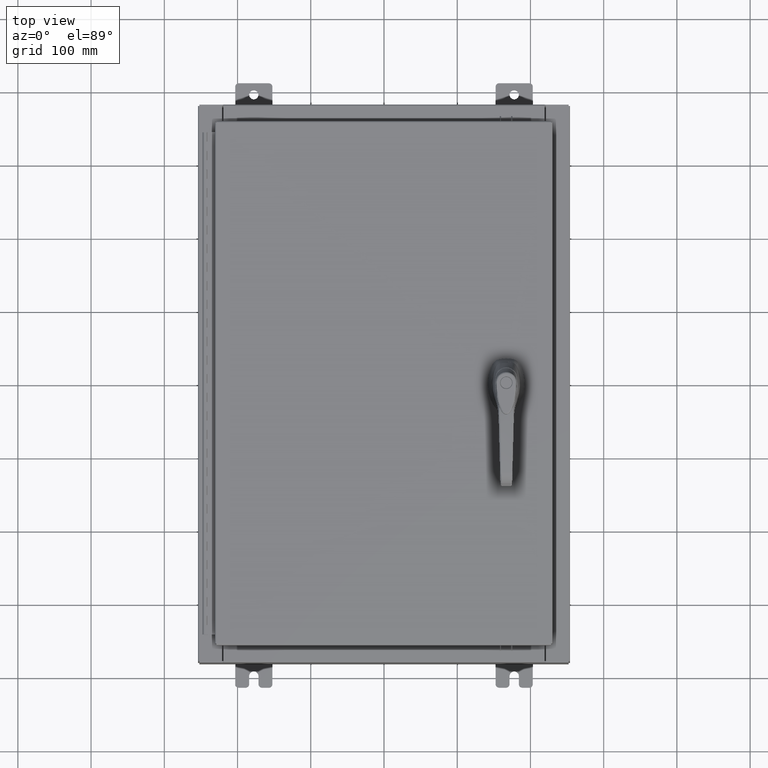
[diagram: clean part render]
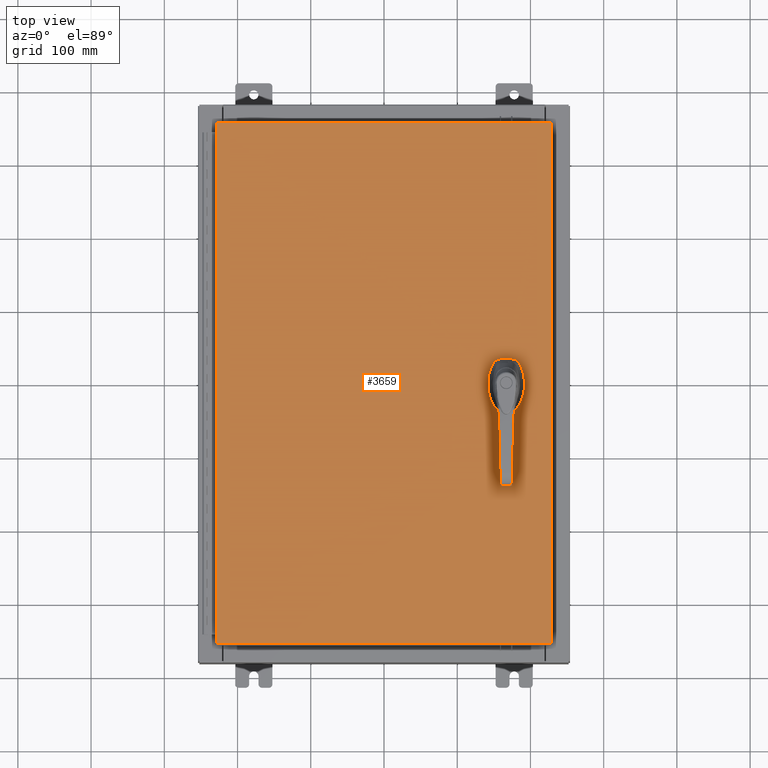
[diagram: same view with one face highlighted and labeled with its STEP entity id]
A machine part, top view. The second image highlights one B-rep face of the part: STEP entity #3659.
In plain terms, the highlighted planar face has unit normal (0, 0, -1).
Its self-contained STEP definition (entity closure, byte-faithful):
#767 = CARTESIAN_POINT ( 'NONE',  ( 6.578000000000000300, -1.338000000000000100, 0.0000000000000000000 ) ) ;
#3507 = CARTESIAN_POINT ( 'NONE',  ( 0.0000000000000000000, 0.0000000000000000000, 0.0000000000000000000 ) ) ;
#3659 = ADVANCED_FACE ( 'NONE', ( #56565, #10816, #102441 ), #39872, .F. ) ;
#4966 = ORIENTED_EDGE ( 'NONE', *, *, #91086, .F. ) ;
#5198 = CARTESIAN_POINT ( 'NONE',  ( -8.990299999999996000, -14.00629999999999800, 1.963515745446189200E-015 ) ) ;
#7175 = CIRCLE ( 'NONE', #39987, 0.4499999999999156900 ) ;
#7738 = EDGE_LOOP ( 'NONE', ( #89109, #10683, #35014, #95473 ) ) ;
#8666 = VERTEX_POINT ( 'NONE', #69613 ) ;
#10013 = DIRECTION ( 'NONE',  ( 1.000000000000000000, 0.0000000000000000000, 0.0000000000000000000 ) ) ;
#10284 = CIRCLE ( 'NONE', #26269, 0.4499999999999156900 ) ;
#10683 = ORIENTED_EDGE ( 'NONE', *, *, #68450, .T. ) ;
#10816 = FACE_OUTER_BOUND ( 'NONE', #7738, .T. ) ;
#10912 = CARTESIAN_POINT ( 'NONE',  ( 8.990300000000001300, 14.00629999999999800, -2.048885995248197400E-016 ) ) ;
#12323 = LINE ( 'NONE', #46281, #30850 ) ;
#13588 = LINE ( 'NONE', #81976, #56440 ) ;
#13757 = VERTEX_POINT ( 'NONE', #10912 ) ;
#14719 = VERTEX_POINT ( 'NONE', #46140 ) ;
#15820 = CIRCLE ( 'NONE', #32874, 0.1715000000000000700 ) ;
#17538 = EDGE_CURVE ( 'NONE', #14719, #90242, #67314, .T. ) ;
#18032 = DIRECTION ( 'NONE',  ( 0.0000000000000000000, -1.000000000000000000, 0.0000000000000000000 ) ) ;
#18447 = VERTEX_POINT ( 'NONE', #79573 ) ;
#20784 = CARTESIAN_POINT ( 'NONE',  ( 8.990300000000001300, 14.00629999999999800, -2.048885995248197400E-016 ) ) ;
#21908 = DIRECTION ( 'NONE',  ( -1.000000000000000000, 0.0000000000000000000, -0.0000000000000000000 ) ) ;
#22307 = DIRECTION ( 'NONE',  ( -0.0000000000000000000, 0.0000000000000000000, 1.000000000000000000 ) ) ;
#23231 = LINE ( 'NONE', #31329, #117724 ) ;
#23769 = CARTESIAN_POINT ( 'NONE',  ( 6.377772629243691100, -0.4029999999999252000, 0.0000000000000000000 ) ) ;
#23992 = DIRECTION ( 'NONE',  ( 1.000000000000000000, -0.0000000000000000000, -0.0000000000000000000 ) ) ;
#24501 = DIRECTION ( 'NONE',  ( 0.0000000000000000000, 1.000000000000000000, 0.0000000000000000000 ) ) ;
#26269 = AXIS2_PLACEMENT_3D ( 'NONE', #26924, #90922, #36077 ) ;
#26298 = VERTEX_POINT ( 'NONE', #23769 ) ;
#26924 = CARTESIAN_POINT ( 'NONE',  ( 6.578000000000000300, 0.0000000000000000000, 0.0000000000000000000 ) ) ;
#27043 = VECTOR ( 'NONE', #116670, 39.37007874015748100 ) ;
#27431 = EDGE_CURVE ( 'NONE', #18447, #26298, #7175, .T. ) ;
#27869 = CARTESIAN_POINT ( 'NONE',  ( 6.377772629243691100, 0.4029999999999252000, 0.0000000000000000000 ) ) ;
#29980 = DIRECTION ( 'NONE',  ( -1.000000000000000000, -0.0000000000000000000, -0.0000000000000000000 ) ) ;
#30850 = VECTOR ( 'NONE', #101118, 39.37007874015748100 ) ;
#31307 = EDGE_CURVE ( 'NONE', #8666, #44349, #83901, .T. ) ;
#31329 = CARTESIAN_POINT ( 'NONE',  ( 0.0000000000000000000, -0.4029999999999252000, 0.0000000000000000000 ) ) ;
#31647 = EDGE_CURVE ( 'NONE', #115485, #8666, #12323, .T. ) ;
#32874 = AXIS2_PLACEMENT_3D ( 'NONE', #767, #64749, #10013 ) ;
#33347 = VERTEX_POINT ( 'NONE', #35863 ) ;
#33824 = VECTOR ( 'NONE', #24501, 39.37007874015748100 ) ;
#34567 = CARTESIAN_POINT ( 'NONE',  ( 6.578000000000000300, 0.0000000000000000000, 0.0000000000000000000 ) ) ;
#35014 = ORIENTED_EDGE ( 'NONE', *, *, #113372, .T. ) ;
#35863 = CARTESIAN_POINT ( 'NONE',  ( 6.175000000000075300, 0.2002273707563079800, 0.0000000000000000000 ) ) ;
#36077 = DIRECTION ( 'NONE',  ( 1.000000000000000000, 0.0000000000000000000, 0.0000000000000000000 ) ) ;
#36359 = DIRECTION ( 'NONE',  ( -0.0000000000000000000, 0.0000000000000000000, 1.000000000000000000 ) ) ;
#36367 = EDGE_CURVE ( 'NONE', #107211, #107252, #15820, .T. ) ;
#37434 = ORIENTED_EDGE ( 'NONE', *, *, #103017, .F. ) ;
#39872 = PLANE ( 'NONE',  #84607 ) ;
#39987 = AXIS2_PLACEMENT_3D ( 'NONE', #34567, #98626, #43799 ) ;
#41051 = ORIENTED_EDGE ( 'NONE', *, *, #36367, .F. ) ;
#43178 = CARTESIAN_POINT ( 'NONE',  ( 8.990300000000001300, -14.00629999999999800, -7.683322482180740400E-016 ) ) ;
#43799 = DIRECTION ( 'NONE',  ( 1.000000000000000000, 0.0000000000000000000, 0.0000000000000000000 ) ) ;
#44349 = VERTEX_POINT ( 'NONE', #43178 ) ;
#44561 = CARTESIAN_POINT ( 'NONE',  ( 6.778227370756310300, -0.4029999999999252000, 0.0000000000000000000 ) ) ;
#46120 = DIRECTION ( 'NONE',  ( -0.0000000000000000000, 0.0000000000000000000, 1.000000000000000000 ) ) ;
#46140 = CARTESIAN_POINT ( 'NONE',  ( 6.980999999999926200, 0.2002273707563080300, 0.0000000000000000000 ) ) ;
#46281 = CARTESIAN_POINT ( 'NONE',  ( -8.990299999999997700, 14.00630000000000100, -2.048885995248197400E-016 ) ) ;
#49356 = ORIENTED_EDGE ( 'NONE', *, *, #109828, .F. ) ;
#49616 = VECTOR ( 'NONE', #29980, 39.37007874015748100 ) ;
#51497 = ORIENTED_EDGE ( 'NONE', *, *, #60052, .F. ) ;
#55254 = LINE ( 'NONE', #79277, #33824 ) ;
#56440 = VECTOR ( 'NONE', #18032, 39.37007874015748100 ) ;
#56445 = EDGE_CURVE ( 'NONE', #107252, #107211, #105177, .T. ) ;
#56512 = EDGE_CURVE ( 'NONE', #14719, #114322, #13588, .T. ) ;
#56565 = FACE_BOUND ( 'NONE', #107512, .T. ) ;
#58902 = DIRECTION ( 'NONE',  ( 1.000000000000000000, 0.0000000000000000000, 0.0000000000000000000 ) ) ;
#59973 = ORIENTED_EDGE ( 'NONE', *, *, #56445, .F. ) ;
#60052 = EDGE_CURVE ( 'NONE', #33347, #18447, #76227, .T. ) ;
#61415 = CARTESIAN_POINT ( 'NONE',  ( 0.0000000000000000000, 0.4029999999999252000, 0.0000000000000000000 ) ) ;
#61527 = CARTESIAN_POINT ( 'NONE',  ( 6.749500000000001200, -1.338000000000000100, 0.0000000000000000000 ) ) ;
#61957 = ORIENTED_EDGE ( 'NONE', *, *, #56512, .T. ) ;
#61985 = EDGE_LOOP ( 'NONE', ( #61957, #82728, #37434, #88612, #51497, #4966, #49356, #75590 ) ) ;
#62405 = CARTESIAN_POINT ( 'NONE',  ( 6.778227370756310300, 0.4029999999999252000, 0.0000000000000000000 ) ) ;
#64749 = DIRECTION ( 'NONE',  ( -0.0000000000000000000, 0.0000000000000000000, 1.000000000000000000 ) ) ;
#65571 = CARTESIAN_POINT ( 'NONE',  ( 6.175000000000075300, 0.0000000000000000000, 0.0000000000000000000 ) ) ;
#67022 = CARTESIAN_POINT ( 'NONE',  ( -8.990299999999997700, 14.00630000000000100, -2.048885995248197400E-016 ) ) ;
#67314 = CIRCLE ( 'NONE', #102463, 0.4499999999999156900 ) ;
#68450 = EDGE_CURVE ( 'NONE', #44349, #13757, #55254, .T. ) ;
#69613 = CARTESIAN_POINT ( 'NONE',  ( -8.990299999999997700, -14.00629999999999800, 1.980589795406590900E-015 ) ) ;
#70007 = LINE ( 'NONE', #61415, #27043 ) ;
#71331 = CIRCLE ( 'NONE', #101669, 0.4499999999999156900 ) ;
#72021 = AXIS2_PLACEMENT_3D ( 'NONE', #91228, #36359, #100429 ) ;
#73990 = LINE ( 'NONE', #20784, #49616 ) ;
#74773 = DIRECTION ( 'NONE',  ( 0.0000000000000000000, -1.000000000000000000, 0.0000000000000000000 ) ) ;
#75590 = ORIENTED_EDGE ( 'NONE', *, *, #17538, .F. ) ;
#76227 = LINE ( 'NONE', #65571, #97747 ) ;
#76708 = DIRECTION ( 'NONE',  ( 0.0000000000000000000, 0.0000000000000000000, -1.000000000000000000 ) ) ;
#77122 = CARTESIAN_POINT ( 'NONE',  ( 6.578000000000000300, 0.0000000000000000000, 0.0000000000000000000 ) ) ;
#78197 = VECTOR ( 'NONE', #23992, 39.37007874015748100 ) ;
#79277 = CARTESIAN_POINT ( 'NONE',  ( 8.990300000000001300, -14.00629999999999800, -7.683322482180740400E-016 ) ) ;
#79573 = CARTESIAN_POINT ( 'NONE',  ( 6.175000000000075300, -0.2002273707563079800, 0.0000000000000000000 ) ) ;
#81976 = CARTESIAN_POINT ( 'NONE',  ( 6.980999999999926200, 0.0000000000000000000, 0.0000000000000000000 ) ) ;
#82728 = ORIENTED_EDGE ( 'NONE', *, *, #95335, .F. ) ;
#83901 = LINE ( 'NONE', #5198, #78197 ) ;
#84607 = AXIS2_PLACEMENT_3D ( 'NONE', #3507, #76708, #21908 ) ;
#86281 = DIRECTION ( 'NONE',  ( 1.000000000000000000, 0.0000000000000000000, 0.0000000000000000000 ) ) ;
#88612 = ORIENTED_EDGE ( 'NONE', *, *, #27431, .F. ) ;
#89109 = ORIENTED_EDGE ( 'NONE', *, *, #31307, .T. ) ;
#90242 = VERTEX_POINT ( 'NONE', #62405 ) ;
#90922 = DIRECTION ( 'NONE',  ( -0.0000000000000000000, 0.0000000000000000000, 1.000000000000000000 ) ) ;
#91086 = EDGE_CURVE ( 'NONE', #107481, #33347, #10284, .T. ) ;
#91228 = CARTESIAN_POINT ( 'NONE',  ( 6.578000000000000300, -1.338000000000000100, 0.0000000000000000000 ) ) ;
#94382 = CARTESIAN_POINT ( 'NONE',  ( 6.406500000000000300, -1.338000000000000100, 0.0000000000000000000 ) ) ;
#95335 = EDGE_CURVE ( 'NONE', #100413, #114322, #71331, .T. ) ;
#95473 = ORIENTED_EDGE ( 'NONE', *, *, #31647, .T. ) ;
#97747 = VECTOR ( 'NONE', #74773, 39.37007874015748100 ) ;
#98626 = DIRECTION ( 'NONE',  ( -0.0000000000000000000, 0.0000000000000000000, 1.000000000000000000 ) ) ;
#100413 = VERTEX_POINT ( 'NONE', #44561 ) ;
#100429 = DIRECTION ( 'NONE',  ( 1.000000000000000000, 0.0000000000000000000, 0.0000000000000000000 ) ) ;
#100950 = CARTESIAN_POINT ( 'NONE',  ( 6.578000000000000300, 0.0000000000000000000, 0.0000000000000000000 ) ) ;
#101118 = DIRECTION ( 'NONE',  ( 0.0000000000000000000, -1.000000000000000000, 0.0000000000000000000 ) ) ;
#101669 = AXIS2_PLACEMENT_3D ( 'NONE', #77122, #22307, #86281 ) ;
#102441 = FACE_BOUND ( 'NONE', #61985, .T. ) ;
#102463 = AXIS2_PLACEMENT_3D ( 'NONE', #100950, #46120, #110153 ) ;
#103017 = EDGE_CURVE ( 'NONE', #26298, #100413, #23231, .T. ) ;
#105177 = CIRCLE ( 'NONE', #72021, 0.1715000000000000700 ) ;
#106116 = CARTESIAN_POINT ( 'NONE',  ( 6.980999999999926200, -0.2002273707563079800, 0.0000000000000000000 ) ) ;
#107211 = VERTEX_POINT ( 'NONE', #94382 ) ;
#107252 = VERTEX_POINT ( 'NONE', #61527 ) ;
#107481 = VERTEX_POINT ( 'NONE', #27869 ) ;
#107512 = EDGE_LOOP ( 'NONE', ( #59973, #41051 ) ) ;
#109828 = EDGE_CURVE ( 'NONE', #90242, #107481, #70007, .T. ) ;
#110153 = DIRECTION ( 'NONE',  ( 1.000000000000000000, 0.0000000000000000000, 0.0000000000000000000 ) ) ;
#113372 = EDGE_CURVE ( 'NONE', #13757, #115485, #73990, .T. ) ;
#114322 = VERTEX_POINT ( 'NONE', #106116 ) ;
#115485 = VERTEX_POINT ( 'NONE', #67022 ) ;
#116670 = DIRECTION ( 'NONE',  ( -1.000000000000000000, 0.0000000000000000000, 0.0000000000000000000 ) ) ;
#117724 = VECTOR ( 'NONE', #58902, 39.37007874015748100 ) ;